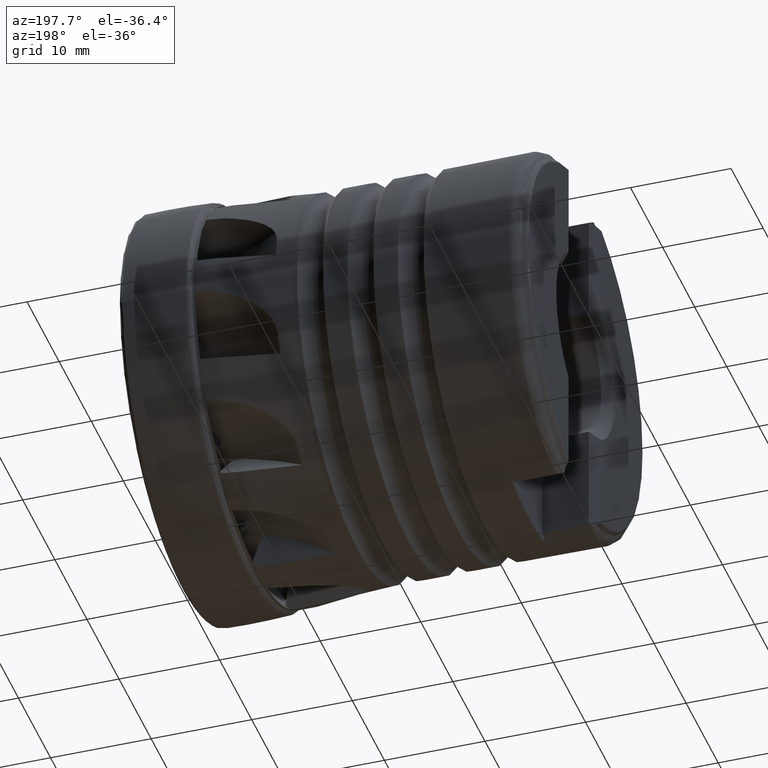
[diagram: clean part render]
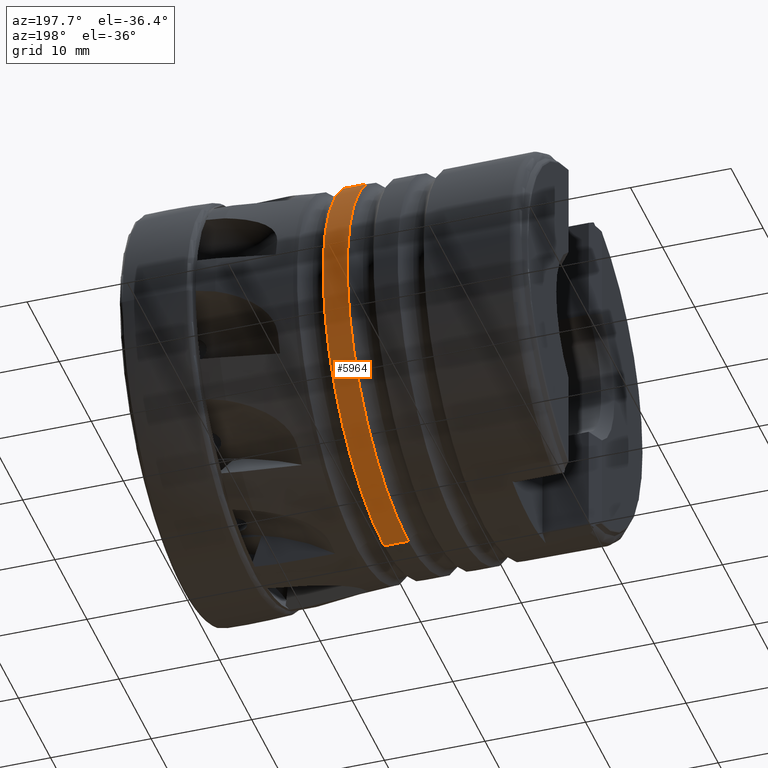
[diagram: same view with one face highlighted and labeled with its STEP entity id]
A machine part, auxiliary view. The second image highlights one B-rep face of the part: STEP entity #5964.
In plain terms, the highlighted cylindrical surface (partial cylindrical patch) has radius 19 mm, axis along (1, -0, -0).
Its self-contained STEP definition (entity closure, byte-faithful):
#11 = CARTESIAN_POINT ( 'NONE',  ( -19.54807621135330800, 0.0000000000000000000, -19.00000000000000000 ) ) ;
#44 = CARTESIAN_POINT ( 'NONE',  ( -19.54807621135330800, 2.326828918379971000E-015, 19.00000000000000000 ) ) ;
#353 = VERTEX_POINT ( 'NONE', #11 ) ;
#392 = VERTEX_POINT ( 'NONE', #44 ) ;
#1301 = CARTESIAN_POINT ( 'NONE',  ( -21.94999999999999200, 0.0000000000000000000, 0.0000000000000000000 ) ) ;
#1302 = DIRECTION ( 'NONE',  ( 1.000000000000000000, -0.0000000000000000000, -0.0000000000000000000 ) ) ;
#1303 = DIRECTION ( 'NONE',  ( 0.0000000000000000000, 0.0000000000000000000, -1.000000000000000000 ) ) ;
#1374 = AXIS2_PLACEMENT_3D ( 'NONE', #1301, #1302, #1303 ) ;
#1376 = CIRCLE ( 'NONE', #1374, 19.00000000000000000 ) ;
#3462 = EDGE_CURVE ( 'NONE', #5296, #5317, #1376, .T. ) ;
#5296 = VERTEX_POINT ( 'NONE', #8303 ) ;
#5317 = VERTEX_POINT ( 'NONE', #8322 ) ;
#5357 = EDGE_LOOP ( 'NONE', ( #5552, #5553, #5554, #5555 ) ) ;
#5552 = ORIENTED_EDGE ( 'NONE', *, *, #3462, .T. ) ;
#5553 = ORIENTED_EDGE ( 'NONE', *, *, #9019, .T. ) ;
#5554 = ORIENTED_EDGE ( 'NONE', *, *, #9020, .F. ) ;
#5555 = ORIENTED_EDGE ( 'NONE', *, *, #9021, .F. ) ;
#5964 = ADVANCED_FACE ( 'NONE', ( #7325 ), #7324, .T. ) ;
#6702 = VECTOR ( 'NONE', #7523, 1000.000000000000000 ) ;
#6706 = VECTOR ( 'NONE', #10505, 1000.000000000000000 ) ;
#6708 = CIRCLE ( 'NONE', #6710, 19.00000000000000000 ) ;
#6710 = AXIS2_PLACEMENT_3D ( 'NONE', #10507, #10508, #10509 ) ;
#7322 = DIRECTION ( 'NONE',  ( 1.000000000000000000, -0.0000000000000000000, -0.0000000000000000000 ) ) ;
#7324 = CYLINDRICAL_SURFACE ( 'NONE', #8884, 19.00000000000000000 ) ;
#7325 = FACE_OUTER_BOUND ( 'NONE', #5357, .T. ) ;
#7326 = CARTESIAN_POINT ( 'NONE',  ( 0.0000000000000000000, 0.0000000000000000000, 0.0000000000000000000 ) ) ;
#7328 = DIRECTION ( 'NONE',  ( 0.0000000000000000000, 0.0000000000000000000, -1.000000000000000000 ) ) ;
#7523 = DIRECTION ( 'NONE',  ( 1.000000000000000000, -0.0000000000000000000, -0.0000000000000000000 ) ) ;
#8303 = CARTESIAN_POINT ( 'NONE',  ( -21.94999999999999200, 0.0000000000000000000, -19.00000000000000000 ) ) ;
#8322 = CARTESIAN_POINT ( 'NONE',  ( -21.94999999999999200, 2.326828918379971000E-015, 19.00000000000000000 ) ) ;
#8884 = AXIS2_PLACEMENT_3D ( 'NONE', #7326, #7322, #7328 ) ;
#9019 = EDGE_CURVE ( 'NONE', #5317, #392, #10496, .T. ) ;
#9020 = EDGE_CURVE ( 'NONE', #353, #392, #6708, .T. ) ;
#9021 = EDGE_CURVE ( 'NONE', #5296, #353, #10506, .T. ) ;
#10496 = LINE ( 'NONE', #10497, #6706 ) ;
#10497 = CARTESIAN_POINT ( 'NONE',  ( 0.0000000000000000000, 2.326828918379971000E-015, 19.00000000000000000 ) ) ;
#10501 = CARTESIAN_POINT ( 'NONE',  ( 0.0000000000000000000, 0.0000000000000000000, -19.00000000000000000 ) ) ;
#10505 = DIRECTION ( 'NONE',  ( 1.000000000000000000, -0.0000000000000000000, -0.0000000000000000000 ) ) ;
#10506 = LINE ( 'NONE', #10501, #6702 ) ;
#10507 = CARTESIAN_POINT ( 'NONE',  ( -19.54807621135330800, 0.0000000000000000000, 0.0000000000000000000 ) ) ;
#10508 = DIRECTION ( 'NONE',  ( 1.000000000000000000, -0.0000000000000000000, -0.0000000000000000000 ) ) ;
#10509 = DIRECTION ( 'NONE',  ( 0.0000000000000000000, 0.0000000000000000000, -1.000000000000000000 ) ) ;